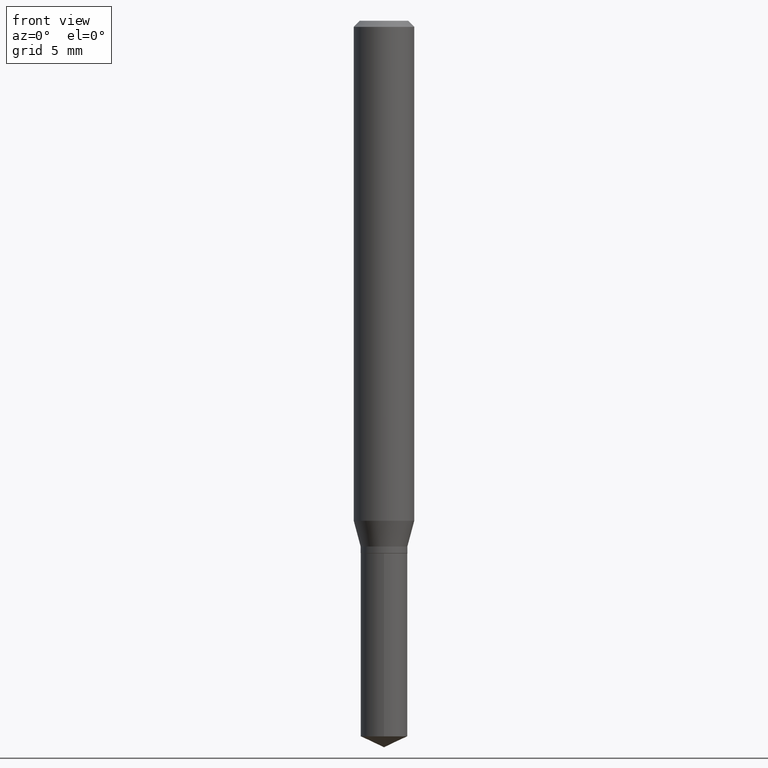
[diagram: clean part render]
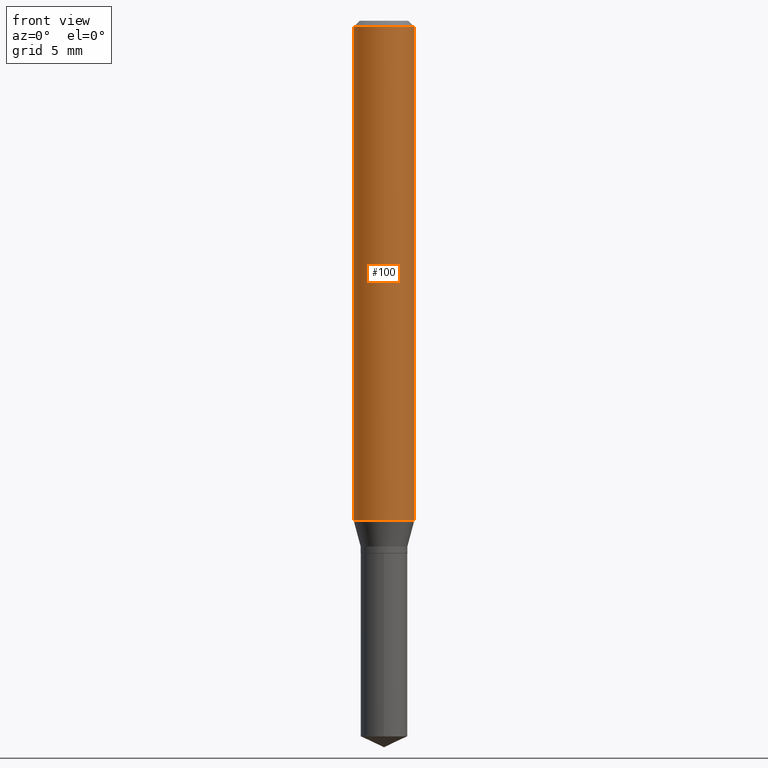
[diagram: same view with one face highlighted and labeled with its STEP entity id]
A machine part, front view. The second image highlights one B-rep face of the part: STEP entity #100.
In plain terms, the highlighted cylindrical surface (edge-blend (fillet) strip) has radius 1.5875 mm, axis along (-0, 0, 1).
Its self-contained STEP definition (entity closure, byte-faithful):
#16 = CIRCLE ( 'NONE', #61, 0.06250000000000000000 ) ;
#17 = CARTESIAN_POINT ( 'NONE',  ( 0.06250000000000012490, -4.040755163728689015E-15, -1.032318275992143430 ) ) ;
#20 = DIRECTION ( 'NONE',  ( 1.000000000000000000, -6.982962677686264344E-15, 0.000000000000000000 ) ) ;
#28 = CYLINDRICAL_SURFACE ( 'NONE', #405, 0.06250000000000006939 ) ;
#30 = DIRECTION ( 'NONE',  ( 1.000000000000000000, -6.982962677686266711E-15, 0.000000000000000000 ) ) ;
#37 = CARTESIAN_POINT ( 'NONE',  ( -0.06250000000000012490, -3.160230786523232758E-15, -1.032318275992143430 ) ) ;
#52 = ORIENTED_EDGE ( 'NONE', *, *, #130, .F. ) ;
#61 = AXIS2_PLACEMENT_3D ( 'NONE', #333, #449, #30 ) ;
#63 = FACE_OUTER_BOUND ( 'NONE', #475, .T. ) ;
#75 = AXIS2_PLACEMENT_3D ( 'NONE', #206, #468, #20 ) ;
#82 = DIRECTION ( 'NONE',  ( -2.445468806185136877E-29, 3.491481338843145188E-15, 1.000000000000000000 ) ) ;
#100 = ADVANCED_FACE ( 'NONE', ( #63 ), #28, .T. ) ;
#111 = EDGE_CURVE ( 'NONE', #347, #460, #194, .T. ) ;
#130 = EDGE_CURVE ( 'NONE', #347, #322, #437, .T. ) ;
#147 = CARTESIAN_POINT ( 'NONE',  ( 0.06250000000000000000, -4.800786840909313294E-16, -0.01250000000000008916 ) ) ;
#179 = DIRECTION ( 'NONE',  ( 1.000000000000000000, -6.982962677686266711E-15, 4.876176775795935793E-29 ) ) ;
#194 = CIRCLE ( 'NONE', #75, 0.06250000000000012490 ) ;
#197 = VERTEX_POINT ( 'NONE', #147 ) ;
#206 = CARTESIAN_POINT ( 'NONE',  ( 2.524502141993605107E-29, -3.604319996373296557E-15, -1.032318275992143430 ) ) ;
#207 = ORIENTED_EDGE ( 'NONE', *, *, #267, .F. ) ;
#249 = CARTESIAN_POINT ( 'NONE',  ( -0.06250000000000006939, 4.440892098500631092E-16, -3.074334431409319267E-30 ) ) ;
#253 = CARTESIAN_POINT ( 'NONE',  ( -0.06250000000000000000, -1.379892546704354260E-15, -0.01250000000000008916 ) ) ;
#259 = EDGE_CURVE ( 'NONE', #460, #197, #329, .T. ) ;
#267 = EDGE_CURVE ( 'NONE', #322, #197, #16, .T. ) ;
#322 = VERTEX_POINT ( 'NONE', #253 ) ;
#323 = CARTESIAN_POINT ( 'NONE',  ( 0.000000000000000000, 0.000000000000000000, 0.000000000000000000 ) ) ;
#326 = ORIENTED_EDGE ( 'NONE', *, *, #259, .T. ) ;
#329 = LINE ( 'NONE', #450, #393 ) ;
#333 = CARTESIAN_POINT ( 'NONE',  ( 3.056836007731442729E-31, -4.364351673553962300E-17, -0.01250000000000008916 ) ) ;
#337 = VECTOR ( 'NONE', #397, 39.37007874015748143 ) ;
#343 = ORIENTED_EDGE ( 'NONE', *, *, #111, .T. ) ;
#347 = VERTEX_POINT ( 'NONE', #37 ) ;
#393 = VECTOR ( 'NONE', #82, 39.37007874015748143 ) ;
#397 = DIRECTION ( 'NONE',  ( -2.445468806185136877E-29, 3.491481338843145188E-15, 1.000000000000000000 ) ) ;
#405 = AXIS2_PLACEMENT_3D ( 'NONE', #323, #476, #179 ) ;
#437 = LINE ( 'NONE', #249, #337 ) ;
#449 = DIRECTION ( 'NONE',  ( -2.445468806185136597E-29, 3.491481338843145583E-15, 1.000000000000000000 ) ) ;
#450 = CARTESIAN_POINT ( 'NONE',  ( 0.06250000000000006939, -4.364351673553921624E-16, 3.047610484872463374E-30 ) ) ;
#460 = VERTEX_POINT ( 'NONE', #17 ) ;
#468 = DIRECTION ( 'NONE',  ( -2.445468806185136597E-29, 3.491481338843145583E-15, 1.000000000000000000 ) ) ;
#475 = EDGE_LOOP ( 'NONE', ( #52, #343, #326, #207 ) ) ;
#476 = DIRECTION ( 'NONE',  ( -2.445468806185136597E-29, 3.491481338843145583E-15, 1.000000000000000000 ) ) ;